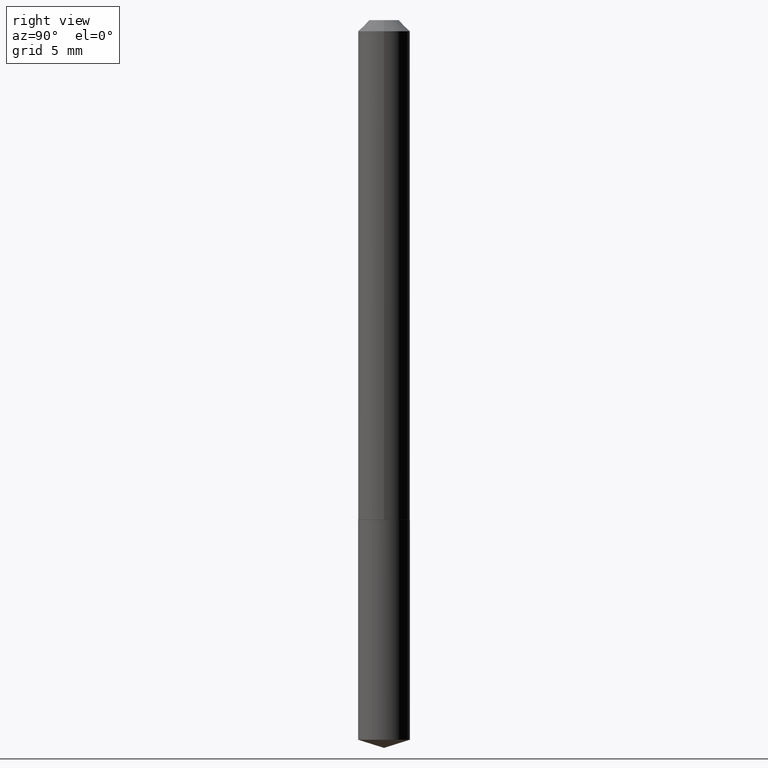
[diagram: clean part render]
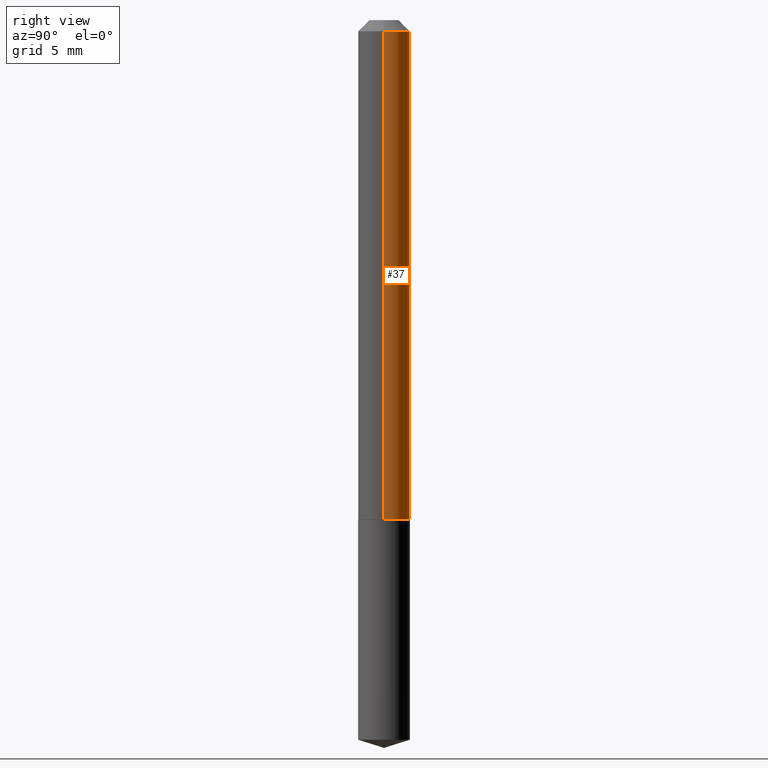
[diagram: same view with one face highlighted and labeled with its STEP entity id]
A machine part, right view. The second image highlights one B-rep face of the part: STEP entity #37.
In plain terms, the highlighted cylindrical surface (edge-blend (fillet) strip) has radius 1.8504 mm, axis along (-0, 0, 1).
Its self-contained STEP definition (entity closure, byte-faithful):
#2 = CARTESIAN_POINT ( 'NONE',  ( -0.07284999999999999809, -1.989689653455501320E-15, -0.03125000000000020123 ) ) ;
#16 = AXIS2_PLACEMENT_3D ( 'NONE', #259, #233, #331 ) ;
#25 = VECTOR ( 'NONE', #368, 39.37007874015748143 ) ;
#31 = CARTESIAN_POINT ( 'NONE',  ( 0.000000000000000000, 0.000000000000000000, 0.000000000000000000 ) ) ;
#37 = ADVANCED_FACE ( 'NONE', ( #232 ), #362, .T. ) ;
#45 = VERTEX_POINT ( 'NONE', #59 ) ;
#51 = EDGE_CURVE ( 'NONE', #379, #92, #228, .T. ) ;
#56 = CARTESIAN_POINT ( 'NONE',  ( -0.07285000000000008136, 5.176303830012335635E-16, -3.583444213250702632E-30 ) ) ;
#59 = CARTESIAN_POINT ( 'NONE',  ( 0.07285000000000015075, -5.414240112144066527E-15, -1.405000000000000471 ) ) ;
#83 = CIRCLE ( 'NONE', #16, 0.07285000000000015075 ) ;
#92 = VERTEX_POINT ( 'NONE', #2 ) ;
#122 = AXIS2_PLACEMENT_3D ( 'NONE', #158, #214, #266 ) ;
#123 = ORIENTED_EDGE ( 'NONE', *, *, #134, .T. ) ;
#132 = CARTESIAN_POINT ( 'NONE',  ( -0.07285000000000015075, -4.387900898073387102E-15, -1.405000000000000471 ) ) ;
#134 = EDGE_CURVE ( 'NONE', #381, #92, #155, .T. ) ;
#155 = LINE ( 'NONE', #56, #337 ) ;
#158 = CARTESIAN_POINT ( 'NONE',  ( 7.642090019328600035E-31, -1.091087918388489897E-16, -0.03125000000000020123 ) ) ;
#183 = DIRECTION ( 'NONE',  ( -2.445468806185136877E-29, 3.491481338843145188E-15, 1.000000000000000000 ) ) ;
#190 = DIRECTION ( 'NONE',  ( 1.000000000000000000, -6.982962677686266711E-15, 4.876176775795935793E-29 ) ) ;
#214 = DIRECTION ( 'NONE',  ( -2.445468806185136597E-29, 3.491481338843145583E-15, 1.000000000000000000 ) ) ;
#228 = CIRCLE ( 'NONE', #122, 0.07284999999999999809 ) ;
#232 = FACE_OUTER_BOUND ( 'NONE', #356, .T. ) ;
#233 = DIRECTION ( 'NONE',  ( -2.445468806185136597E-29, 3.491481338843145583E-15, 1.000000000000000000 ) ) ;
#259 = CARTESIAN_POINT ( 'NONE',  ( 3.435883672690118017E-29, -4.905531281074621455E-15, -1.405000000000000471 ) ) ;
#266 = DIRECTION ( 'NONE',  ( 1.000000000000000000, -6.982962677686265922E-15, 0.000000000000000000 ) ) ;
#282 = AXIS2_PLACEMENT_3D ( 'NONE', #31, #364, #190 ) ;
#283 = EDGE_CURVE ( 'NONE', #45, #379, #365, .T. ) ;
#287 = ORIENTED_EDGE ( 'NONE', *, *, #51, .F. ) ;
#293 = ORIENTED_EDGE ( 'NONE', *, *, #355, .T. ) ;
#305 = CARTESIAN_POINT ( 'NONE',  ( 0.07285000000000008136, -5.087088310694450726E-16, 3.552294781167343025E-30 ) ) ;
#331 = DIRECTION ( 'NONE',  ( 1.000000000000000000, -6.982962677686263555E-15, 0.000000000000000000 ) ) ;
#334 = CARTESIAN_POINT ( 'NONE',  ( 0.07284999999999999809, -6.178176229082934830E-16, -0.03125000000000020123 ) ) ;
#337 = VECTOR ( 'NONE', #183, 39.37007874015748143 ) ;
#355 = EDGE_CURVE ( 'NONE', #45, #381, #83, .T. ) ;
#356 = EDGE_LOOP ( 'NONE', ( #293, #123, #287, #376 ) ) ;
#362 = CYLINDRICAL_SURFACE ( 'NONE', #282, 0.07285000000000008136 ) ;
#364 = DIRECTION ( 'NONE',  ( -2.445468806185136597E-29, 3.491481338843145583E-15, 1.000000000000000000 ) ) ;
#365 = LINE ( 'NONE', #305, #25 ) ;
#368 = DIRECTION ( 'NONE',  ( -2.445468806185136877E-29, 3.491481338843145188E-15, 1.000000000000000000 ) ) ;
#376 = ORIENTED_EDGE ( 'NONE', *, *, #283, .F. ) ;
#379 = VERTEX_POINT ( 'NONE', #334 ) ;
#381 = VERTEX_POINT ( 'NONE', #132 ) ;